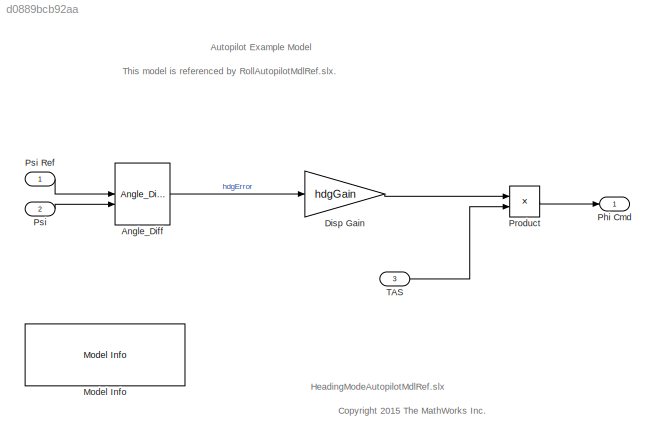
MODEL slx_d0889bcb92aa
KIND model
CONFIG AbsTol = auto
CONFIG EnableMultiTasking = off
CONFIG FixedStep = 1/40
CONFIG MaxStep = auto
CONFIG MinStep = auto
CONFIG RelTol = 1e-3
CONFIG SampleTimeConstraint = Unconstrained
CONFIG SolverName = FixedStepDiscrete
CONFIG StartTime = 0.0
CONFIG StopTime = 25
WORKSPACE source: mxarray member
WORKSPACE hdgGain: Simulink.Parameter (value not decoded)
BLOCK [Reference] Angle_Diff  REF=LibraryAutopilot/Angle_Diff
  AttributesFormatString = -180 deg to +180 deg range
  SourceBlock = LibraryAutopilot/Angle_Diff
  SourceType = SubSystem
BLOCK [Gain] Disp Gain
  Gain = hdgGain
BLOCK [Reference] Model Info  REF=simulink/Model-Wide
Utilities/Model Info
  SourceBlock = simulink/Model-Wide\nUtilities/Model Info
  SourceType = CMBlock
BLOCK [Outport] Phi Cmd
  OutDataTypeStr = double
  PortDimensions = 1
  SampleTime = 1/40
  SignalType = real
BLOCK [Product] Product
  RndMeth = Zero
BLOCK [Inport] Psi
  Interpolate = off
  OutDataTypeStr = double
  Port = 2
  PortDimensions = 1
  SampleTime = 1/40
  SignalType = real
BLOCK [Inport] Psi Ref
  Interpolate = off
  OutDataTypeStr = double
  PortDimensions = 1
  SampleTime = 1/40
  SignalType = real
BLOCK [Inport] TAS
  Interpolate = off
  OutDataTypeStr = double
  Port = 3
  PortDimensions = 1
  SampleTime = 1/40
  SignalType = real
ANNOTATION (root): This model is referenced by RollAutopilotMdlRef.slx.
ANNOTATION (root): Autopilot Example Model
ANNOTATION (root): <copyright redacted>
ANNOTATION (root): HeadingModeAutopilotMdlRef.slx
LINE Angle_Diff:1 -> Disp Gain:1
LINE Disp Gain:1 -> Product:1
LINE Product:1 -> Phi Cmd:1
LINE Psi Ref:1 -> Angle_Diff:1
LINE Psi:1 -> Angle_Diff:2
LINE TAS:1 -> Product:2
